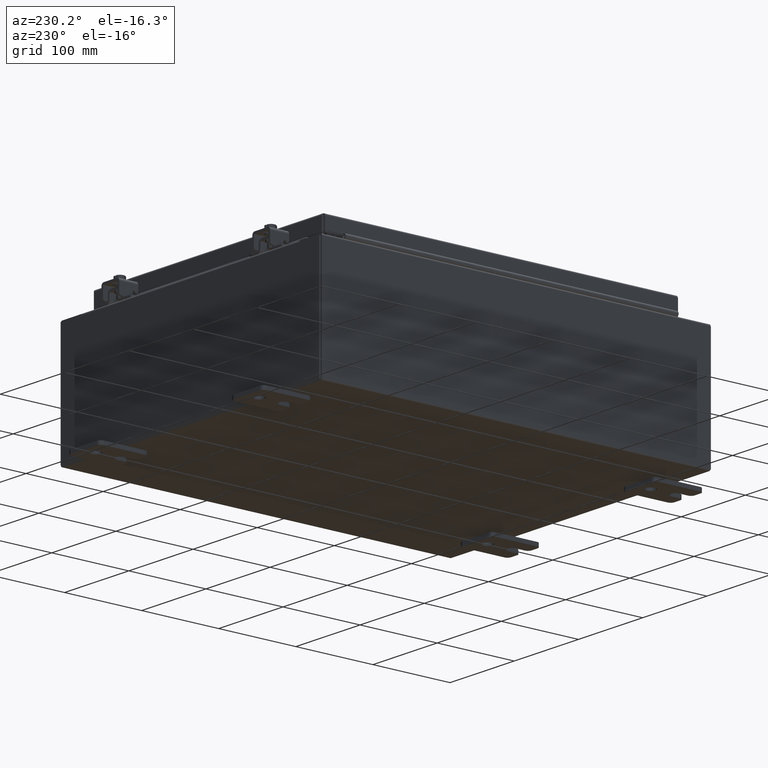
[diagram: clean part render]
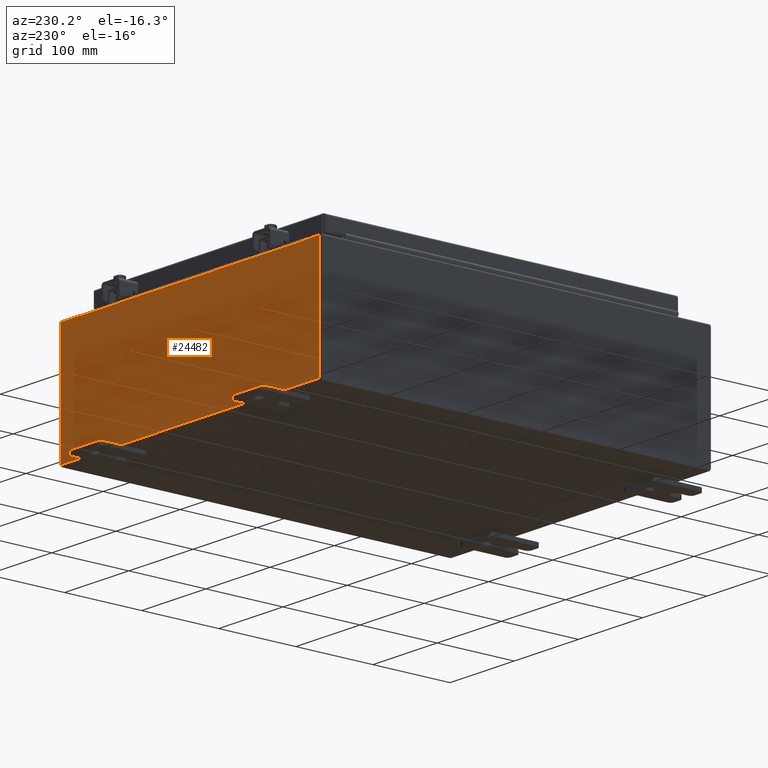
[diagram: same view with one face highlighted and labeled with its STEP entity id]
A machine part, auxiliary view. The second image highlights one B-rep face of the part: STEP entity #24482.
In plain terms, the highlighted planar face has unit normal (0, -1, 0).
Its self-contained STEP definition (entity closure, byte-faithful):
#237 = VECTOR ( 'NONE', #17735, 39.37007874015748100 ) ;
#277 = DIRECTION ( 'NONE',  ( 0.0000000000000000000, 0.0000000000000000000, -1.000000000000000000 ) ) ;
#291 = ORIENTED_EDGE ( 'NONE', *, *, #22718, .T. ) ;
#298 = AXIS2_PLACEMENT_3D ( 'NONE', #22036, #20613, #277 ) ;
#532 = CARTESIAN_POINT ( 'NONE',  ( -7.925300000000000000, 0.0000000000000000000, 2.925300000000000500 ) ) ;
#1062 = VERTEX_POINT ( 'NONE', #27641 ) ;
#1267 = CIRCLE ( 'NONE', #298, 0.01867500000000003900 ) ;
#1381 = FACE_OUTER_BOUND ( 'NONE', #23706, .T. ) ;
#1410 = CARTESIAN_POINT ( 'NONE',  ( 6.674549999999999100, 0.0000000000000000000, 2.925300000000000500 ) ) ;
#1828 = VERTEX_POINT ( 'NONE', #532 ) ;
#2155 = DIRECTION ( 'NONE',  ( -0.0000000000000000000, 1.000000000000000000, -0.0000000000000000000 ) ) ;
#2222 = AXIS2_PLACEMENT_3D ( 'NONE', #28742, #2155, #23150 ) ;
#2253 = VECTOR ( 'NONE', #29587, 39.37007874015748100 ) ;
#2558 = CARTESIAN_POINT ( 'NONE',  ( -6.674550000000000900, 0.0000000000000000000, 2.874950000000000600 ) ) ;
#2670 = CARTESIAN_POINT ( 'NONE',  ( 6.637199999999999100, 0.0000000000000000000, 0.0000000000000000000 ) ) ;
#2964 = VERTEX_POINT ( 'NONE', #4557 ) ;
#2971 = VECTOR ( 'NONE', #10347, 39.37007874015748100 ) ;
#3162 = ORIENTED_EDGE ( 'NONE', *, *, #25151, .F. ) ;
#3454 = CARTESIAN_POINT ( 'NONE',  ( -6.637200000000000900, -1.707404996040164500E-016, 2.912300000000000600 ) ) ;
#3876 = CARTESIAN_POINT ( 'NONE',  ( -6.674550000000000900, -0.0000000000000000000, 0.0000000000000000000 ) ) ;
#4557 = CARTESIAN_POINT ( 'NONE',  ( 6.637199999999999100, 0.0000000000000000000, 2.912300000000000600 ) ) ;
#5059 = ORIENTED_EDGE ( 'NONE', *, *, #25538, .T. ) ;
#5293 = DIRECTION ( 'NONE',  ( 1.000000000000000000, 0.0000000000000000000, 0.0000000000000000000 ) ) ;
#5707 = CARTESIAN_POINT ( 'NONE',  ( -7.925300000000000000, 0.0000000000000000000, -2.925299999999999600 ) ) ;
#6482 = ORIENTED_EDGE ( 'NONE', *, *, #24902, .F. ) ;
#6546 = CARTESIAN_POINT ( 'NONE',  ( -7.925300000000000000, 0.0000000000000000000, 2.925300000000000500 ) ) ;
#6759 = DIRECTION ( 'NONE',  ( 0.0000000000000000000, -1.000000000000000000, 0.0000000000000000000 ) ) ;
#7078 = ORIENTED_EDGE ( 'NONE', *, *, #25287, .T. ) ;
#7365 = DIRECTION ( 'NONE',  ( 0.0000000000000000000, 0.0000000000000000000, -1.000000000000000000 ) ) ;
#7473 = VERTEX_POINT ( 'NONE', #5707 ) ;
#9552 = DIRECTION ( 'NONE',  ( 0.0000000000000000000, 0.0000000000000000000, 1.000000000000000000 ) ) ;
#10347 = DIRECTION ( 'NONE',  ( 0.0000000000000000000, 0.0000000000000000000, 1.000000000000000000 ) ) ;
#10498 = LINE ( 'NONE', #3876, #2971 ) ;
#10838 = DIRECTION ( 'NONE',  ( 1.000000000000000000, 0.0000000000000000000, 0.0000000000000000000 ) ) ;
#10922 = ORIENTED_EDGE ( 'NONE', *, *, #25025, .F. ) ;
#10927 = CARTESIAN_POINT ( 'NONE',  ( 0.0000000000000000000, 0.0000000000000000000, 0.0000000000000000000 ) ) ;
#10929 = DIRECTION ( 'NONE',  ( 1.000000000000000000, 0.0000000000000000000, 0.0000000000000000000 ) ) ;
#10969 = CARTESIAN_POINT ( 'NONE',  ( -7.925300000000000000, 0.0000000000000000000, 2.925300000000000500 ) ) ;
#11805 = VECTOR ( 'NONE', #10838, 39.37007874015748100 ) ;
#12155 = PLANE ( 'NONE',  #29880 ) ;
#13927 = LINE ( 'NONE', #2670, #20269 ) ;
#13958 = LINE ( 'NONE', #20926, #17587 ) ;
#14480 = ORIENTED_EDGE ( 'NONE', *, *, #22931, .T. ) ;
#15061 = LINE ( 'NONE', #23620, #11805 ) ;
#17195 = ORIENTED_EDGE ( 'NONE', *, *, #25116, .T. ) ;
#17493 = VERTEX_POINT ( 'NONE', #2558 ) ;
#17587 = VECTOR ( 'NONE', #7365, 39.37007874015748100 ) ;
#17735 = DIRECTION ( 'NONE',  ( 0.0000000000000000000, 0.0000000000000000000, -1.000000000000000000 ) ) ;
#18025 = CARTESIAN_POINT ( 'NONE',  ( 7.925300000000000000, 0.0000000000000000000, -2.925299999999999600 ) ) ;
#18618 = LINE ( 'NONE', #23035, #237 ) ;
#19045 = VERTEX_POINT ( 'NONE', #23793 ) ;
#20027 = CARTESIAN_POINT ( 'NONE',  ( -7.925300000000000000, 0.0000000000000000000, -2.925299999999999600 ) ) ;
#20269 = VECTOR ( 'NONE', #9552, 39.37007874015748100 ) ;
#20527 = DIRECTION ( 'NONE',  ( -2.170286390200002500E-014, 0.0000000000000000000, -1.000000000000000000 ) ) ;
#20613 = DIRECTION ( 'NONE',  ( -0.0000000000000000000, 1.000000000000000000, -0.0000000000000000000 ) ) ;
#20687 = ORIENTED_EDGE ( 'NONE', *, *, #25154, .F. ) ;
#20782 = VECTOR ( 'NONE', #20972, 39.37007874015748100 ) ;
#20878 = LINE ( 'NONE', #6546, #20782 ) ;
#20926 = CARTESIAN_POINT ( 'NONE',  ( 7.925300000000000000, 0.0000000000000000000, 2.925300000000000500 ) ) ;
#20972 = DIRECTION ( 'NONE',  ( -0.0000000000000000000, -0.0000000000000000000, 1.000000000000000000 ) ) ;
#21745 = VERTEX_POINT ( 'NONE', #1410 ) ;
#21812 = VECTOR ( 'NONE', #5293, 39.37007874015748100 ) ;
#21836 = VERTEX_POINT ( 'NONE', #29364 ) ;
#21958 = LINE ( 'NONE', #10969, #24280 ) ;
#22036 = CARTESIAN_POINT ( 'NONE',  ( 6.655874999999998200, 0.0000000000000000000, 2.874950000000000600 ) ) ;
#22253 = VERTEX_POINT ( 'NONE', #22816 ) ;
#22595 = VECTOR ( 'NONE', #20527, 39.37007874015748100 ) ;
#22718 = EDGE_CURVE ( 'NONE', #1828, #22253, #21958, .T. ) ;
#22816 = CARTESIAN_POINT ( 'NONE',  ( -6.674550000000000900, 0.0000000000000000000, 2.925300000000000500 ) ) ;
#22931 = EDGE_CURVE ( 'NONE', #21745, #1062, #15061, .T. ) ;
#22958 = LINE ( 'NONE', #24654, #22595 ) ;
#22984 = LINE ( 'NONE', #29905, #21812 ) ;
#23035 = CARTESIAN_POINT ( 'NONE',  ( -6.637200000000000900, -0.0000000000000000000, 0.0000000000000000000 ) ) ;
#23150 = DIRECTION ( 'NONE',  ( 0.0000000000000000000, 0.0000000000000000000, -1.000000000000000000 ) ) ;
#23575 = VERTEX_POINT ( 'NONE', #18025 ) ;
#23620 = CARTESIAN_POINT ( 'NONE',  ( -7.925300000000000000, 0.0000000000000000000, 2.925300000000000500 ) ) ;
#23706 = EDGE_LOOP ( 'NONE', ( #26601, #6482, #10922, #17195, #3162, #20687, #26241, #14480, #7078, #28598, #5059, #291 ) ) ;
#23761 = VERTEX_POINT ( 'NONE', #3454 ) ;
#23793 = CARTESIAN_POINT ( 'NONE',  ( 6.674549999999999100, 0.0000000000000000000, 2.874950000000000600 ) ) ;
#24280 = VECTOR ( 'NONE', #10929, 39.37007874015748100 ) ;
#24482 = ADVANCED_FACE ( 'NONE', ( #1381 ), #12155, .F. ) ;
#24654 = CARTESIAN_POINT ( 'NONE',  ( 6.674549999999936900, -0.0000000000000000000, -1.448568502570928700E-013 ) ) ;
#24780 = EDGE_CURVE ( 'NONE', #17493, #22253, #10498, .T. ) ;
#24826 = LINE ( 'NONE', #20027, #2253 ) ;
#24902 = EDGE_CURVE ( 'NONE', #26211, #17493, #25099, .T. ) ;
#24998 = CARTESIAN_POINT ( 'NONE',  ( -6.637200000000000900, -0.0000000000000000000, 2.874950000000000600 ) ) ;
#25025 = EDGE_CURVE ( 'NONE', #23761, #26211, #18618, .T. ) ;
#25099 = CIRCLE ( 'NONE', #2222, 0.01867500000000003900 ) ;
#25116 = EDGE_CURVE ( 'NONE', #23761, #2964, #22984, .T. ) ;
#25151 = EDGE_CURVE ( 'NONE', #21836, #2964, #13927, .T. ) ;
#25154 = EDGE_CURVE ( 'NONE', #19045, #21836, #1267, .T. ) ;
#25235 = EDGE_CURVE ( 'NONE', #21745, #19045, #22958, .T. ) ;
#25287 = EDGE_CURVE ( 'NONE', #1062, #23575, #13958, .T. ) ;
#25450 = DIRECTION ( 'NONE',  ( 0.0000000000000000000, -0.0000000000000000000, -1.000000000000000000 ) ) ;
#25503 = EDGE_CURVE ( 'NONE', #23575, #7473, #24826, .T. ) ;
#25538 = EDGE_CURVE ( 'NONE', #7473, #1828, #20878, .T. ) ;
#26211 = VERTEX_POINT ( 'NONE', #24998 ) ;
#26241 = ORIENTED_EDGE ( 'NONE', *, *, #25235, .F. ) ;
#26601 = ORIENTED_EDGE ( 'NONE', *, *, #24780, .F. ) ;
#27641 = CARTESIAN_POINT ( 'NONE',  ( 7.925300000000000000, 0.0000000000000000000, 2.925300000000000500 ) ) ;
#28598 = ORIENTED_EDGE ( 'NONE', *, *, #25503, .T. ) ;
#28742 = CARTESIAN_POINT ( 'NONE',  ( -6.655875000000000900, 0.0000000000000000000, 2.874950000000000600 ) ) ;
#29364 = CARTESIAN_POINT ( 'NONE',  ( 6.637199999999997300, 0.0000000000000000000, 2.874950000000000600 ) ) ;
#29587 = DIRECTION ( 'NONE',  ( -1.000000000000000000, -0.0000000000000000000, -0.0000000000000000000 ) ) ;
#29880 = AXIS2_PLACEMENT_3D ( 'NONE', #10927, #6759, #25450 ) ;
#29905 = CARTESIAN_POINT ( 'NONE',  ( -6.637200000000000900, -1.707404996040164500E-016, 2.912300000000000600 ) ) ;